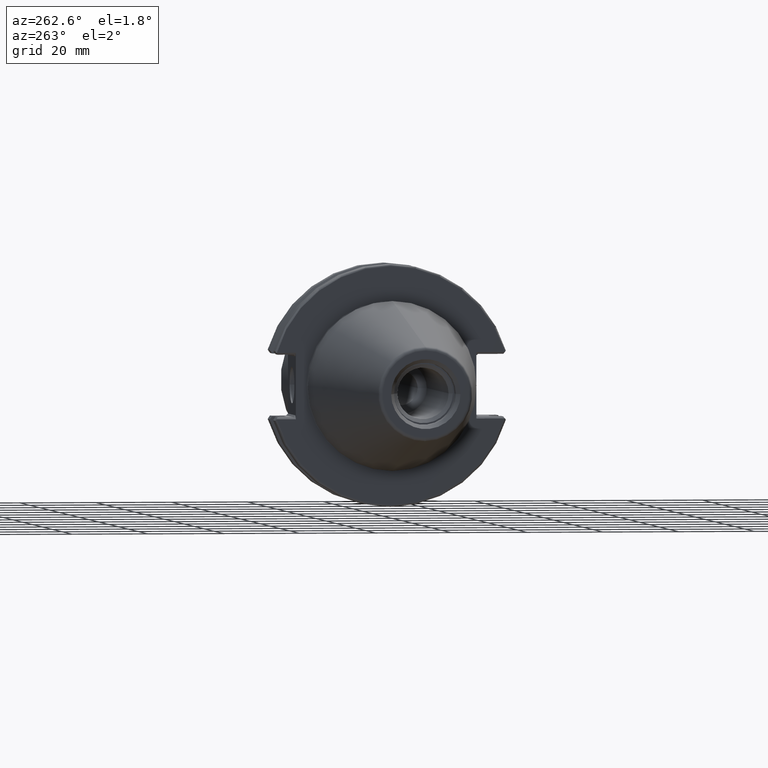
[diagram: clean part render]
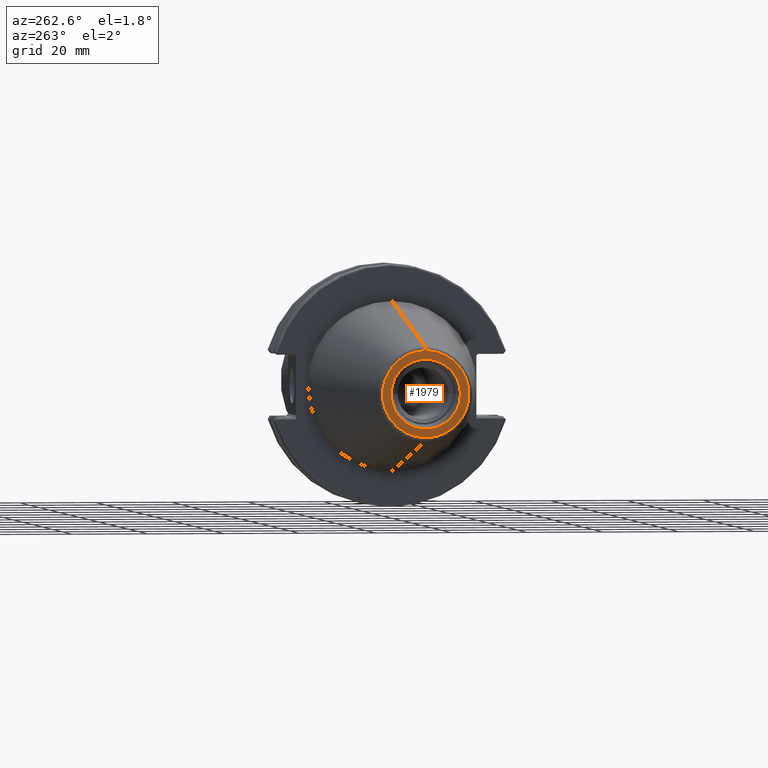
[diagram: same view with one face highlighted and labeled with its STEP entity id]
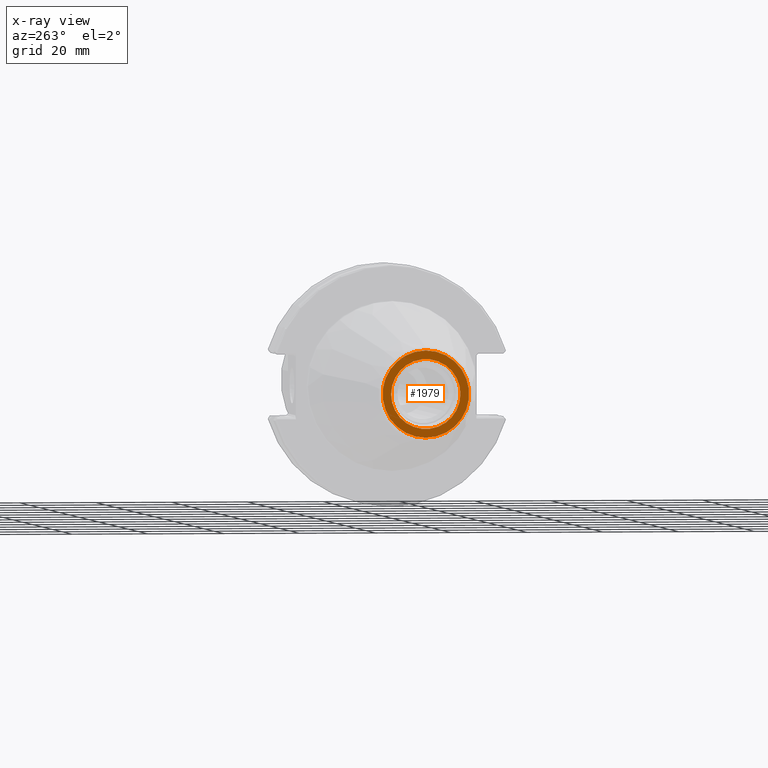
[diagram: x-ray of the same camera — body ghosted, the highlighted face saturated]
A machine part, auxiliary view. The second image highlights one B-rep face of the part: STEP entity #1979.
The next image is the same camera in x-ray: the body ghosted, the highlighted face saturated — about 0% of this face is hidden behind the body in this view.
In plain terms, the highlighted planar face has unit normal (1, 0, 0).
Its self-contained STEP definition (entity closure, byte-faithful):
#22=CARTESIAN_POINT('',(-6.825E1,0.E0,0.E0));
#23=DIRECTION('',(-1.E0,0.E0,0.E0));
#24=DIRECTION('',(0.E0,0.E0,-1.E0));
#25=AXIS2_PLACEMENT_3D('',#22,#23,#24);
#27=CARTESIAN_POINT('',(-6.825E1,0.E0,0.E0));
#28=DIRECTION('',(-1.E0,0.E0,0.E0));
#29=DIRECTION('',(0.E0,0.E0,1.E0));
#30=AXIS2_PLACEMENT_3D('',#27,#28,#29);
#32=CARTESIAN_POINT('',(-6.825E1,3.730349362741E-14,0.E0));
#33=DIRECTION('',(1.E0,0.E0,0.E0));
#34=DIRECTION('',(0.E0,-1.E0,0.E0));
#35=AXIS2_PLACEMENT_3D('',#32,#33,#34);
#37=CARTESIAN_POINT('',(-6.825E1,3.730349362741E-14,0.E0));
#38=DIRECTION('',(1.E0,0.E0,0.E0));
#39=DIRECTION('',(0.E0,1.E0,0.E0));
#40=AXIS2_PLACEMENT_3D('',#37,#38,#39);
#1626=CARTESIAN_POINT('',(-6.825E1,1.296214523857E-14,-1.140713056080E1));
#1627=CARTESIAN_POINT('',(-6.825E1,-1.435911583144E-14,1.140713056080E1));
#1628=VERTEX_POINT('',#1626);
#1629=VERTEX_POINT('',#1627);
#1674=CARTESIAN_POINT('',(-6.825E1,-9.15E0,0.E0));
#1675=CARTESIAN_POINT('',(-6.825E1,9.15E0,0.E0));
#1676=VERTEX_POINT('',#1674);
#1677=VERTEX_POINT('',#1675);
#1963=CARTESIAN_POINT('',(-6.825E1,0.E0,0.E0));
#1964=DIRECTION('',(1.E0,0.E0,0.E0));
#1965=DIRECTION('',(0.E0,0.E0,1.E0));
#1966=AXIS2_PLACEMENT_3D('',#1963,#1964,#1965);
#1967=PLANE('',#1966);
#1969=ORIENTED_EDGE('',*,*,#1968,.F.);
#1970=ORIENTED_EDGE('',*,*,#1953,.F.);
#1971=EDGE_LOOP('',(#1969,#1970));
#1972=FACE_OUTER_BOUND('',#1971,.F.);
#1974=ORIENTED_EDGE('',*,*,#1973,.F.);
#1976=ORIENTED_EDGE('',*,*,#1975,.F.);
#1977=EDGE_LOOP('',(#1974,#1976));
#1978=FACE_BOUND('',#1977,.F.);
#1979=ADVANCED_FACE('',(#1972,#1978),#1967,.F.);
#26=CIRCLE('',#25,1.140713056080E1);
#31=CIRCLE('',#30,1.140713056080E1);
#36=CIRCLE('',#35,9.15E0);
#41=CIRCLE('',#40,9.15E0);
#1953=EDGE_CURVE('',#1629,#1628,#31,.T.);
#1968=EDGE_CURVE('',#1628,#1629,#26,.T.);
#1973=EDGE_CURVE('',#1676,#1677,#36,.T.);
#1975=EDGE_CURVE('',#1677,#1676,#41,.T.);